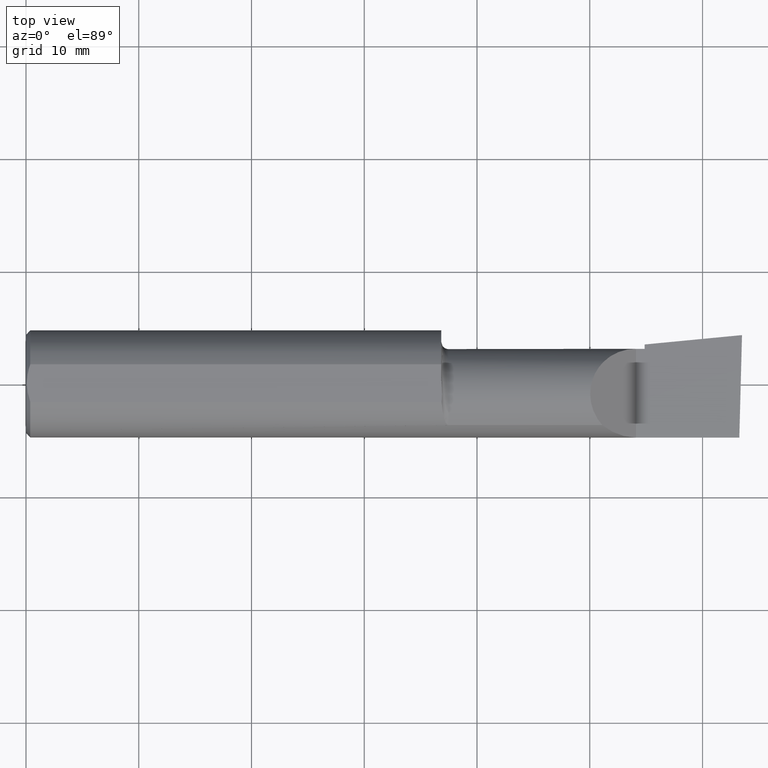
[diagram: clean part render]
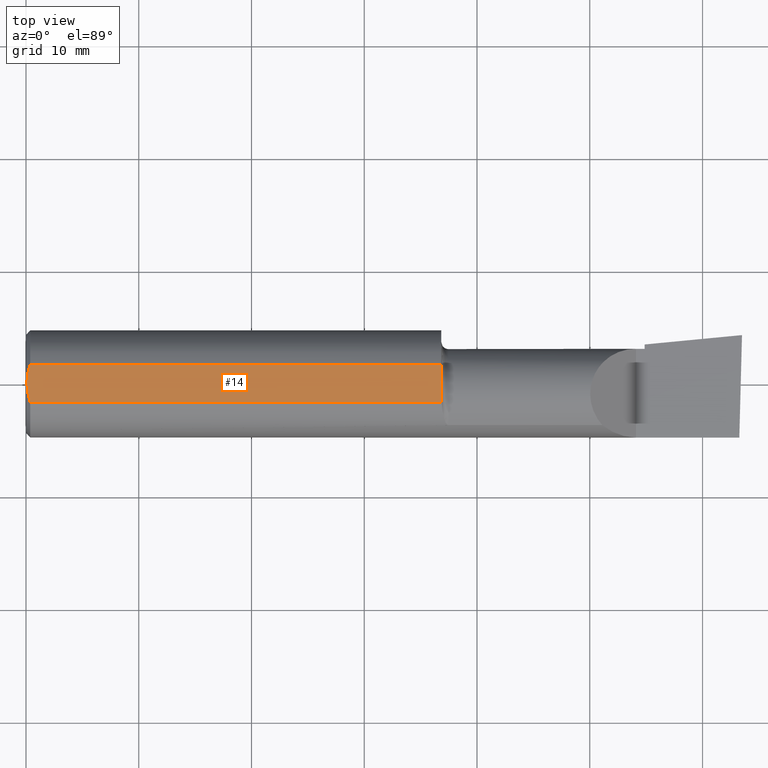
[diagram: same view with one face highlighted and labeled with its STEP entity id]
A machine part, top view. The second image highlights one B-rep face of the part: STEP entity #14.
In plain terms, the highlighted planar face has unit normal (0, -0, -1).
Its self-contained STEP definition (entity closure, byte-faithful):
#2 = CARTESIAN_POINT ( 'NONE',  ( 0.01499999999999997863, -0.06597272163553657975, 0.1753499999999999781 ) ) ;
#14 = ADVANCED_FACE ( 'NONE', ( #480 ), #426, .F. ) ;
#23 = CARTESIAN_POINT ( 'NONE',  ( 1.451116380138691264, -0.06597272163553657975, 0.1753499999999999781 ) ) ;
#26 = LINE ( 'NONE', #522, #102 ) ;
#28 = ORIENTED_EDGE ( 'NONE', *, *, #385, .F. ) ;
#38 = CARTESIAN_POINT ( 'NONE',  ( 2.500000000000000000, 0.2373500000000000332, 0.1753499999999999504 ) ) ;
#42 = CARTESIAN_POINT ( 'NONE',  ( 0.003000000000000218638, 2.334609556160449697E-17, 0.1753499999999999781 ) ) ;
#53 = VERTEX_POINT ( 'NONE', #523 ) ;
#56 = CARTESIAN_POINT ( 'NONE',  ( 0.008227791779583789808, -0.04447712204611815878, 0.1753499999999999781 ) ) ;
#59 = CARTESIAN_POINT ( 'NONE',  ( 0.000000000000000000, -0.06597272163553657975, 0.1753499999999999781 ) ) ;
#74 = LINE ( 'NONE', #165, #274 ) ;
#82 = CARTESIAN_POINT ( 'NONE',  ( 1.450000000000000178, 0.02172596722253233859, 0.1753499999999999781 ) ) ;
#101 = CARTESIAN_POINT ( 'NONE',  ( 0.003000000000000172667, -0.01126410975715121283, 0.1753500000000000059 ) ) ;
#102 = VECTOR ( 'NONE', #365, 39.37007874015748143 ) ;
#123 = ORIENTED_EDGE ( 'NONE', *, *, #269, .F. ) ;
#136 = CARTESIAN_POINT ( 'NONE',  ( 0.003000000000000218638, 2.334609556160449697E-17, 0.1753499999999999781 ) ) ;
#137 = VERTEX_POINT ( 'NONE', #533 ) ;
#143 = CARTESIAN_POINT ( 'NONE',  ( 0.01125230581755086272, 0.05532998191409922023, 0.1753500000000000059 ) ) ;
#144 = B_SPLINE_CURVE_WITH_KNOTS ( 'NONE', 3,
 ( #82, #419, #610, #313, #216, #268, #172, #605, #278, #23 ),
 .UNSPECIFIED., .F., .F.,
 ( 4, 2, 2, 2, 4 ),
 ( 0.01227444304810502811, 0.01283060897601855099, 0.01338677490393207388, 0.01394294083184559677, 0.01449910675975911965 ),
 .UNSPECIFIED. ) ;
#155 = CARTESIAN_POINT ( 'NONE',  ( 1.450000000000000178, 0.02172596722253233859, 0.1753499999999999781 ) ) ;
#165 = CARTESIAN_POINT ( 'NONE',  ( 1.450000000000000178, 0.2373500000000000332, 0.1753499999999999504 ) ) ;
#172 = CARTESIAN_POINT ( 'NONE',  ( 1.452020598872754586, -0.03676412395316108056, 0.1753500000000000614 ) ) ;
#189 = CARTESIAN_POINT ( 'NONE',  ( 0.01499999999999999424, 0.06597272163553663527, 0.1753499999999999781 ) ) ;
#214 = VERTEX_POINT ( 'NONE', #155 ) ;
#216 = CARTESIAN_POINT ( 'NONE',  ( 1.451446793517544576, -0.01487494471390338711, 0.1753500000000000059 ) ) ;
#230 = DIRECTION ( 'NONE',  ( 0.000000000000000000, -1.438723400918613551E-16, -1.000000000000000000 ) ) ;
#240 = EDGE_CURVE ( 'NONE', #53, #137, #26, .T. ) ;
#247 = CARTESIAN_POINT ( 'NONE',  ( 0.01128414053810044941, -0.05542038647445821781, 0.1753499999999999781 ) ) ;
#253 = DIRECTION ( 'NONE',  ( -1.000000000000000000, -0.000000000000000000, -0.000000000000000000 ) ) ;
#268 = CARTESIAN_POINT ( 'NONE',  ( 1.451936435452952923, -0.02946557294852162820, 0.1753500000000000614 ) ) ;
#269 = EDGE_CURVE ( 'NONE', #214, #536, #144, .T. ) ;
#274 = VECTOR ( 'NONE', #360, 39.37007874015748143 ) ;
#278 = CARTESIAN_POINT ( 'NONE',  ( 1.451479449616800199, -0.05867400124853733995, 0.1753500000000000059 ) ) ;
#287 = CARTESIAN_POINT ( 'NONE',  ( 0.004115035183746292881, 0.02255629470626744487, 0.1753499999999999781 ) ) ;
#300 = CARTESIAN_POINT ( 'NONE',  ( 1.451116380138691264, -0.06597272163553657975, 0.1753499999999999781 ) ) ;
#307 = B_SPLINE_CURVE_WITH_KNOTS ( 'NONE', 3,
 ( #136, #575, #287, #627, #143, #189 ),
 .UNSPECIFIED., .F., .F.,
 ( 4, 2, 4 ),
 ( 0.003480013901590607410, 0.004330767971208083697, 0.005181522040825559984 ),
 .UNSPECIFIED. ) ;
#313 = CARTESIAN_POINT ( 'NONE',  ( 1.451049074448709231, -0.007621984361107582255, 0.1753500000000000059 ) ) ;
#352 = EDGE_CURVE ( 'NONE', #137, #214, #74, .T. ) ;
#360 = DIRECTION ( 'NONE',  ( -6.829619984160658046E-18, -1.000000000000000000, 1.438723400918613551E-16 ) ) ;
#365 = DIRECTION ( 'NONE',  ( 1.000000000000000000, 0.000000000000000000, 0.000000000000000000 ) ) ;
#379 = DIRECTION ( 'NONE',  ( 0.000000000000000000, 1.000000000000000000, -1.438723400918613551E-16 ) ) ;
#385 = EDGE_CURVE ( 'NONE', #394, #53, #307, .T. ) ;
#394 = VERTEX_POINT ( 'NONE', #42 ) ;
#398 = CARTESIAN_POINT ( 'NONE',  ( 0.004093196532652216939, -0.02240707710020816909, 0.1753499999999999504 ) ) ;
#409 = ORIENTED_EDGE ( 'NONE', *, *, #240, .F. ) ;
#419 = CARTESIAN_POINT ( 'NONE',  ( 1.450000000000000400, 0.01439074984010968970, 0.1753500000000000614 ) ) ;
#421 = VERTEX_POINT ( 'NONE', #573 ) ;
#426 = PLANE ( 'NONE',  #633 ) ;
#443 = CARTESIAN_POINT ( 'NONE',  ( 0.003000000000000218638, 2.334609556160449697E-17, 0.1753499999999999781 ) ) ;
#477 = ORIENTED_EDGE ( 'NONE', *, *, #517, .F. ) ;
#480 = FACE_OUTER_BOUND ( 'NONE', #604, .T. ) ;
#508 = VECTOR ( 'NONE', #253, 39.37007874015748143 ) ;
#517 = EDGE_CURVE ( 'NONE', #421, #394, #567, .T. ) ;
#522 = CARTESIAN_POINT ( 'NONE',  ( 0.000000000000000000, 0.06597272163553663527, 0.1753499999999999781 ) ) ;
#523 = CARTESIAN_POINT ( 'NONE',  ( 0.01499999999999999424, 0.06597272163553663527, 0.1753499999999999781 ) ) ;
#533 = CARTESIAN_POINT ( 'NONE',  ( 1.450000000000000178, 0.06597272163553663527, 0.1753499999999999781 ) ) ;
#536 = VERTEX_POINT ( 'NONE', #300 ) ;
#541 = ORIENTED_EDGE ( 'NONE', *, *, #628, .F. ) ;
#544 = LINE ( 'NONE', #59, #508 ) ;
#567 = B_SPLINE_CURVE_WITH_KNOTS ( 'NONE', 3,
 ( #2, #247, #56, #398, #101, #443 ),
 .UNSPECIFIED., .F., .F.,
 ( 4, 2, 4 ),
 ( 0.001779942938356815062, 0.002629978419973711019, 0.003480013901590607410 ),
 .UNSPECIFIED. ) ;
#573 = CARTESIAN_POINT ( 'NONE',  ( 0.01499999999999997863, -0.06597272163553657975, 0.1753499999999999781 ) ) ;
#575 = CARTESIAN_POINT ( 'NONE',  ( 0.003000000000000169632, 0.01127363201155560934, 0.1753499999999999781 ) ) ;
#604 = EDGE_LOOP ( 'NONE', ( #123, #623, #409, #28, #477, #541 ) ) ;
#605 = CARTESIAN_POINT ( 'NONE',  ( 1.451790586316524800, -0.05136925160306746868, 0.1753500000000000059 ) ) ;
#610 = CARTESIAN_POINT ( 'NONE',  ( 1.450322286002908356, 0.007053356780963122505, 0.1753499999999999781 ) ) ;
#623 = ORIENTED_EDGE ( 'NONE', *, *, #352, .F. ) ;
#627 = CARTESIAN_POINT ( 'NONE',  ( 0.008244775919947424855, 0.04453482769755855164, 0.1753499999999999504 ) ) ;
#628 = EDGE_CURVE ( 'NONE', #536, #421, #544, .T. ) ;
#633 = AXIS2_PLACEMENT_3D ( 'NONE', #38, #230, #379 ) ;